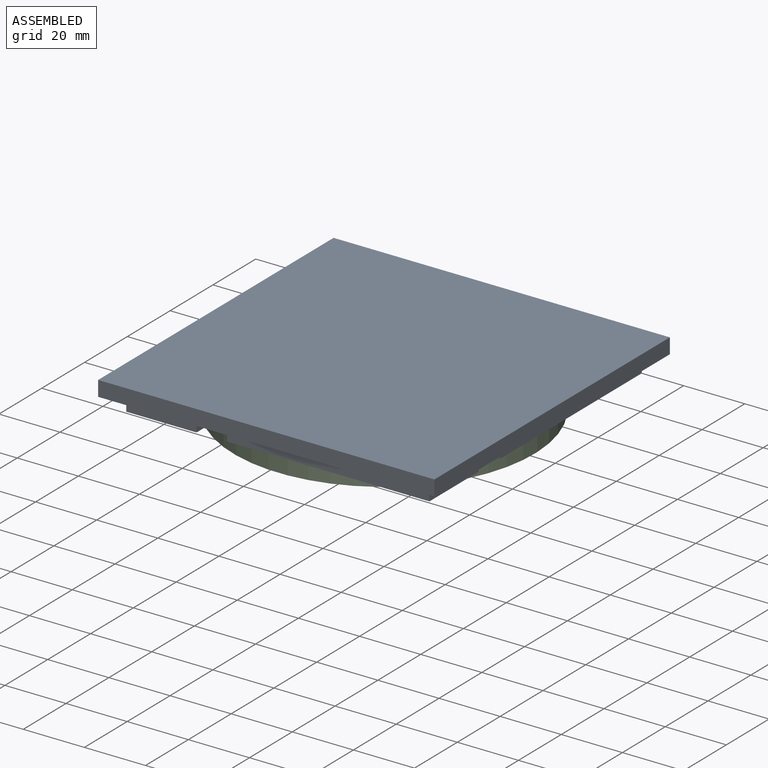
[diagram: assembled view]
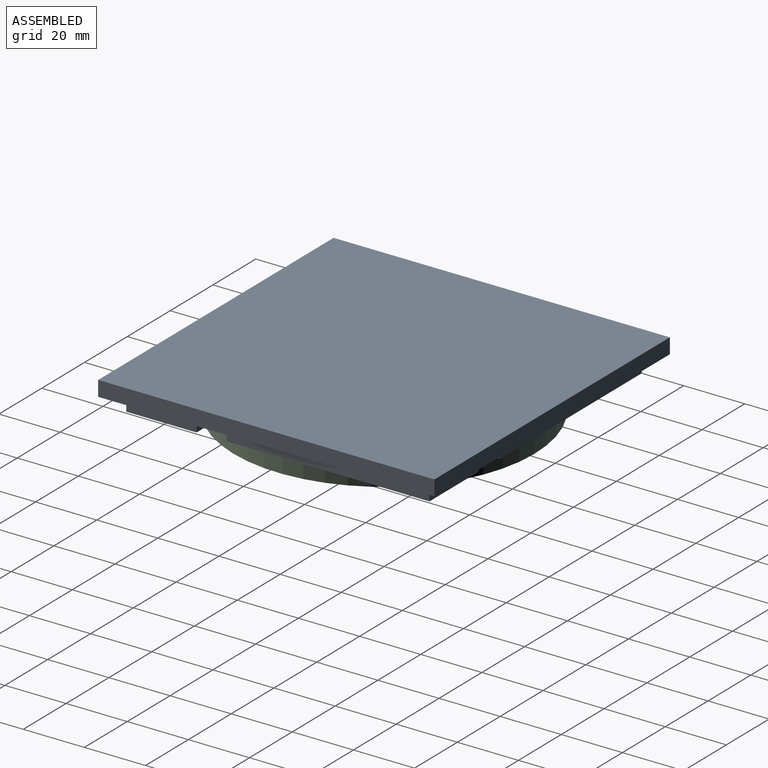
[diagram: assembled view, second angle]
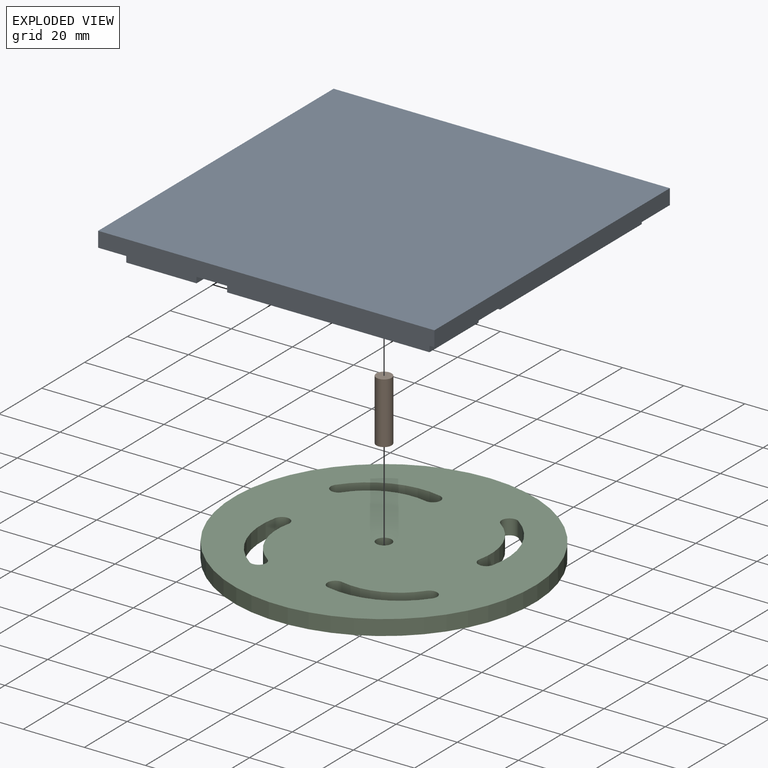
[diagram: exploded view]
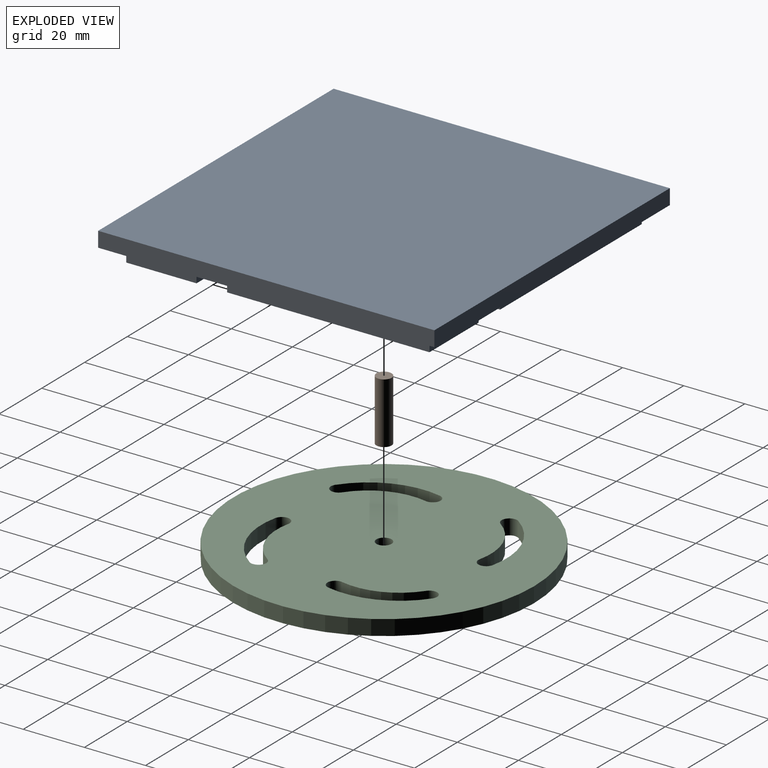
[diagram: exploded view, second angle]
ASSEMBLY  parts=3 mates=2
PART A: 29 faces, bbox 110x110x10 mm
  f0: plane 66.2x5mm, normal (0,-1,0), area 331mm2, adj f1,f20,f21,f22
  f1: plane 23x5mm, normal (1,0,0), area 115mm2, adj f0,f2,f21,f22
  f2: plane 33x5mm, normal (0,1,0), area 165mm2, adj f1,f3,f21,f22
  f3: plane 10x5mm, normal (1,0,0), area 50mm2, adj f2,f4,f21,f22
  f4: plane 33x5mm, normal (0,-1,0), area 165mm2, adj f3,f5,f21,f22
  f5: plane 66.2x5mm, normal (1,0,0), area 331mm2, adj f4,f6,f21,f22
  f6: plane 23x5mm, normal (0,1,0), area 115mm2, adj f5,f7,f21,f22
  f7: plane 33x5mm, normal (-1,0,0), area 165mm2, adj f6,f8,f21,f22
  f8: plane 10x5mm, normal (0,1,0), area 50mm2, adj f7,f9,f21,f22
  f9: plane 33x5mm, normal (1,0,0), area 165mm2, adj f8,f10,f21,f22
  f10: plane 66.2x5mm, normal (0,1,0), area 331mm2, adj f9,f11,f21,f22
  f11: plane 23x5mm, normal (-1,0,0), area 115mm2, adj f10,f12,f21,f22
  f12: plane 33x5mm, normal (0,-1,0), area 165mm2, adj f11,f13,f21,f22
  f13: plane 10x5mm, normal (-1,0,0), area 50mm2, adj f12,f14,f21,f22
  f14: plane 33x5mm, normal (0,1,0), area 165mm2, adj f13,f15,f21,f22
  f15: plane 66.2x5mm, normal (-1,0,0), area 331mm2, adj f14,f16,f21,f22
  f16: plane 23x5mm, normal (0,-1,0), area 115mm2, adj f15,f17,f21,f22
  f17: plane 33x5mm, normal (1,0,0), area 165mm2, adj f16,f18,f21,f22
  f18: plane 10x5mm, normal (0,-1,0), area 50mm2, adj f17,f20,f21,f22
  f19: cylinder r=2.5mm len=5mm, axis (0,0,-1), area 78.5mm2, adj f21,f28
  f20: plane 33x5mm, normal (-1,0,0), area 165mm2, adj f0,f18,f21,f22
  f21: plane 99.2x99.2mm, normal (0,0,-1), area 8501mm2, adj f0,f1,f2,f3,f4,f5,f6,f7
  f22: plane 110x110mm, normal (0,0,-1), area 3579.4mm2, adj f0,f1,f2,f3,f4,f5,f6,f7
  f23: plane 110x110mm, normal (0,0,1), area 12100mm2, adj f24,f25,f26,f27
  f24: plane 110x5mm, normal (1,0,0), area 550mm2, adj f22,f23,f25,f27
  f25: plane 110x5mm, normal (0,-1,0), area 550mm2, adj f22,f23,f24,f26
  f26: plane 110x5mm, normal (-1,0,0), area 550mm2, adj f22,f23,f25,f27
  f27: plane 110x5mm, normal (0,1,0), area 550mm2, adj f22,f23,f24,f26
  f28: plane 5x5mm, normal (0,0,-1), area 19.6mm2, adj f19
PART B: 3 faces, bbox 5x5x20 mm
  f0: cylinder r=2.5mm len=20mm, axis (0,0,1), area 314.2mm2, adj f1,f2
  f1: plane 5x5mm, normal (0,0,-1), area 19.6mm2, adj f0
  f2: plane 5x5mm, normal (0,0,1), area 19.6mm2, adj f0
PART C: 20 faces, bbox 98.4x98.4x5 mm
  f0: plane 98.4x98.4mm, normal (0,0,-1), area 6941.5mm2, adj f2,f3,f4,f5,f6,f7,f8,f9
  f1: plane 98.4x98.4mm, normal (0,0,1), area 6941.5mm2, adj f2,f3,f4,f5,f6,f7,f8,f9
  f2: cylinder r=49.2mm len=98.4mm, axis (0,0,1), area 1545.7mm2, adj f0,f1
  f3: cylinder r=2.5mm len=5mm, axis (0,0,1), area 78.5mm2, adj f0,f1
  f4: cylinder r=20.83mm len=19.24mm, axis (0,0,1), area 122.7mm2, adj f0,f1,f5,f6
  f5: cylinder r=2.55mm len=5mm, axis (0,0,1), area 40.1mm2, adj f0,f1,f4,f7
  f6: cylinder r=2.55mm len=5.1mm, axis (0,0,1), area 40.1mm2, adj f0,f1,f4,f7
  f7: cylinder r=25.93mm len=23.96mm, axis (0,0,1), area 152.7mm2, adj f0,f1,f5,f6
  f8: cylinder r=25.93mm len=23.96mm, axis (0,0,1), area 152.7mm2, adj f0,f1,f9,f10
  f9: cylinder r=2.55mm len=5mm, axis (0,0,1), area 40.1mm2, adj f0,f1,f8,f11
  f10: cylinder r=2.55mm len=5.1mm, axis (0,0,1), area 40.1mm2, adj f0,f1,f8,f11
  f11: cylinder r=20.83mm len=19.24mm, axis (0,0,1), area 122.7mm2, adj f0,f1,f9,f10
  f12: cylinder r=25.93mm len=23.96mm, axis (0,0,1), area 152.7mm2, adj f0,f1,f13,f14
  f13: cylinder r=2.55mm len=5mm, axis (0,0,1), area 40.1mm2, adj f0,f1,f12,f15
  f14: cylinder r=2.55mm len=5.1mm, axis (0,0,1), area 40.1mm2, adj f0,f1,f12,f15
  f15: cylinder r=20.83mm len=19.24mm, axis (0,0,1), area 122.7mm2, adj f0,f1,f13,f14
  f16: cylinder r=25.93mm len=23.96mm, axis (0,0,1), area 152.7mm2, adj f0,f1,f17,f18
  f17: cylinder r=2.55mm len=5mm, axis (0,0,1), area 40.1mm2, adj f0,f1,f16,f19
  f18: cylinder r=2.55mm len=5.1mm, axis (0,0,1), area 40.1mm2, adj f0,f1,f16,f19
  f19: cylinder r=20.83mm len=19.24mm, axis (0,0,1), area 122.7mm2, adj f0,f1,f17,f18
PLACE A t=(0,0,-10)mm
PLACE B t=(0,0,-10)mm
PLACE C rot(axis=(0,0,-1),35.1deg) t=(0,0,-10)mm
MATE revolute C.f2 <-> A.f19  axis (0,0,1) through (0,0,-10)mm
MATE fastened B.f0 <-> A.f19  axis (0,0,1) through (0,0,-5)mm
